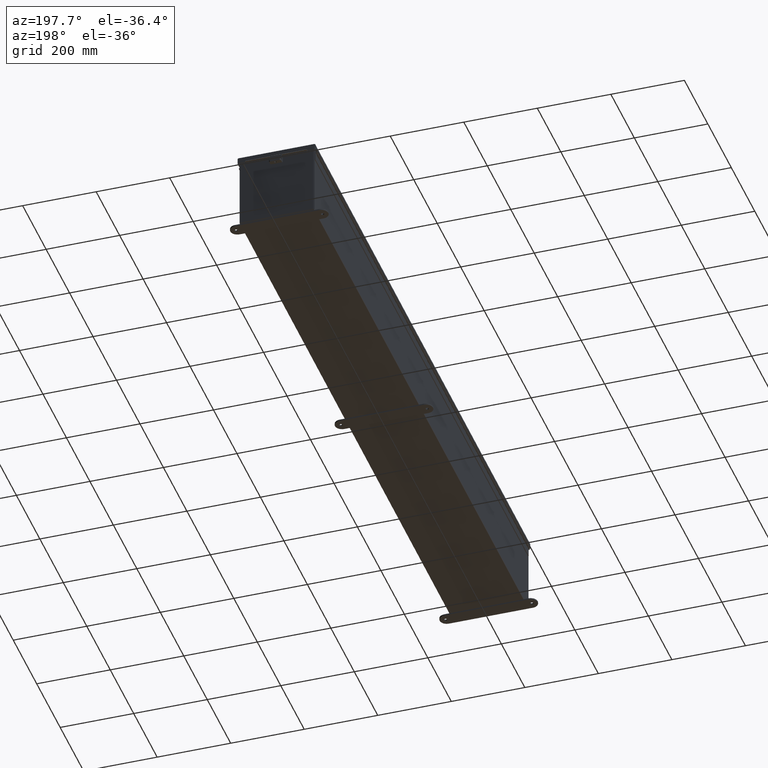
[diagram: clean part render]
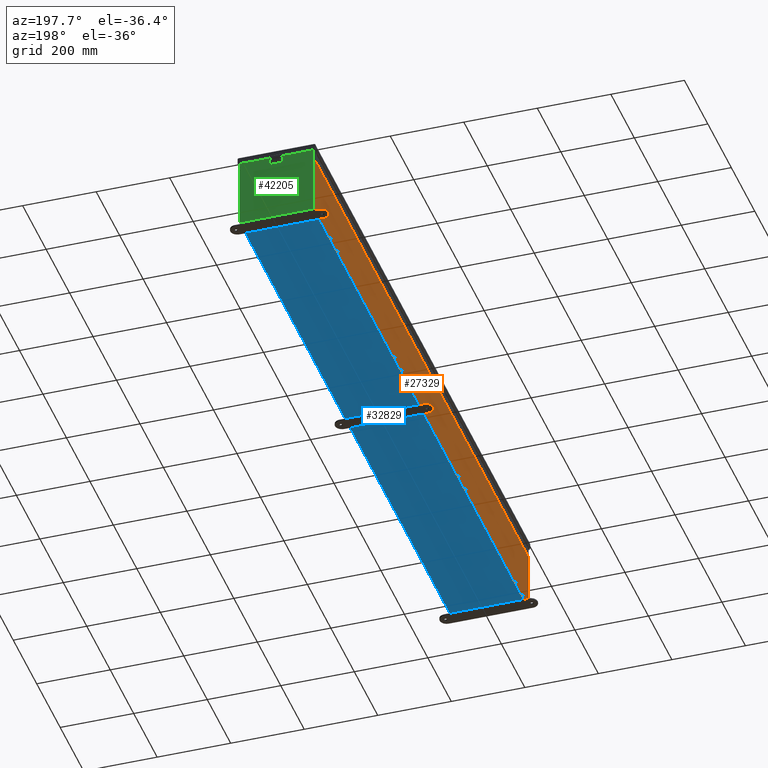
[diagram: same view with three faces highlighted in distinct colors, each labeled with its STEP entity id]
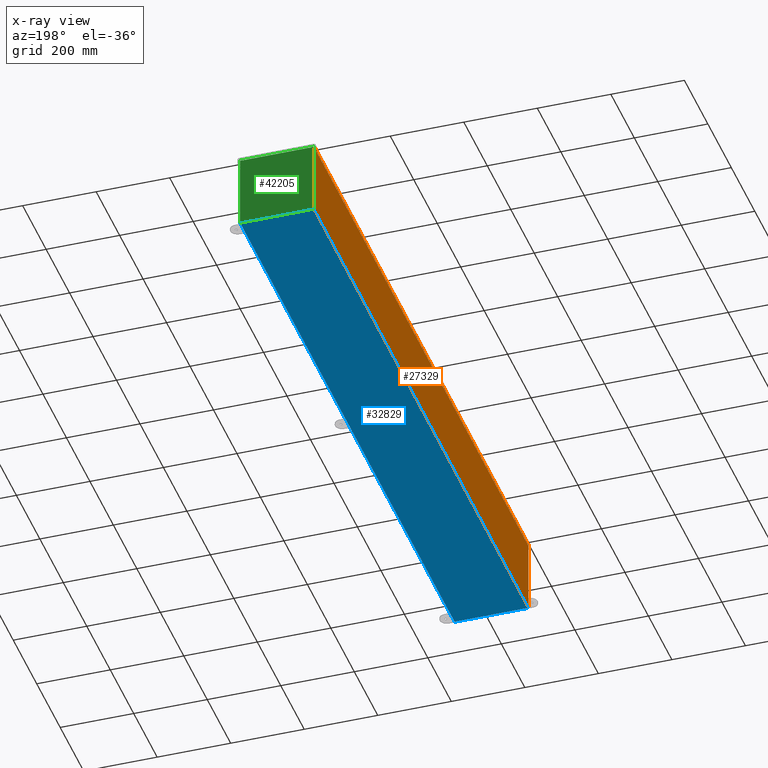
[diagram: x-ray of the same camera — body ghosted, the three highlighted faces saturated]
A machine part, auxiliary view with three faces highlighted in distinct colors.
The next image is the same camera in x-ray (body ghosted, the three faces saturated) — at least one of them is partly hidden behind the body in this view.
Their STEP definitions:

[orange] entity #27329 — the highlighted planar face has unit normal (1, 0, 0).
#32 = EDGE_CURVE ( 'NONE', #48515, #21701, #20606, .T. ) ;
#58 = DIRECTION ( 'NONE',  ( -7.938364978030872700E-032, 1.000000000000000000, 2.281273637518070200E-017 ) ) ;
#2464 = LINE ( 'NONE', #43130, #32541 ) ;
#4367 = PLANE ( 'NONE',  #34565 ) ;
#4527 = CARTESIAN_POINT ( 'NONE',  ( -3.999999999999997800, 35.92530000000000700, 0.01299999999999902300 ) ) ;
#6604 = EDGE_LOOP ( 'NONE', ( #47813, #37841, #17619, #45711 ) ) ;
#8225 = DIRECTION ( 'NONE',  ( 3.479795166820706300E-015, 0.0000000000000000000, -1.000000000000000000 ) ) ;
#10122 = EDGE_CURVE ( 'NONE', #17709, #26341, #26328, .T. ) ;
#11805 = DIRECTION ( 'NONE',  ( 0.0000000000000000000, 1.000000000000000000, 0.0000000000000000000 ) ) ;
#12003 = EDGE_CURVE ( 'NONE', #17709, #21701, #20037, .T. ) ;
#16453 = DIRECTION ( 'NONE',  ( 3.479795166820705900E-015, 0.0000000000000000000, -1.000000000000000000 ) ) ;
#17619 = ORIENTED_EDGE ( 'NONE', *, *, #12003, .F. ) ;
#17709 = VERTEX_POINT ( 'NONE', #40035 ) ;
#19374 = VECTOR ( 'NONE', #8225, 39.37007874015748100 ) ;
#20037 = LINE ( 'NONE', #43270, #32861 ) ;
#20234 = DIRECTION ( 'NONE',  ( -3.479795166820706300E-015, 5.567672266913130300E-016, 1.000000000000000000 ) ) ;
#20606 = LINE ( 'NONE', #35673, #19374 ) ;
#21701 = VERTEX_POINT ( 'NONE', #4527 ) ;
#24230 = CARTESIAN_POINT ( 'NONE',  ( -4.000000000000024900, 35.92530000000000000, 7.837599999999999200 ) ) ;
#25092 = VECTOR ( 'NONE', #20234, 39.37007874015748100 ) ;
#26328 = LINE ( 'NONE', #43618, #25092 ) ;
#26341 = VERTEX_POINT ( 'NONE', #26576 ) ;
#26576 = CARTESIAN_POINT ( 'NONE',  ( -4.000000000000026600, -35.92529999999997900, 7.837599999999999200 ) ) ;
#27329 = ADVANCED_FACE ( 'NONE', ( #28481 ), #4367, .F. ) ;
#28481 = FACE_OUTER_BOUND ( 'NONE', #6604, .T. ) ;
#32541 = VECTOR ( 'NONE', #11805, 39.37007874015748100 ) ;
#32861 = VECTOR ( 'NONE', #58, 39.37007874015748100 ) ;
#34565 = AXIS2_PLACEMENT_3D ( 'NONE', #43605, #39872, #16453 ) ;
#35673 = CARTESIAN_POINT ( 'NONE',  ( -3.999999999999997800, 35.92530000000000000, -1.417999849211356600E-014 ) ) ;
#37841 = ORIENTED_EDGE ( 'NONE', *, *, #32, .T. ) ;
#39872 = DIRECTION ( 'NONE',  ( 1.000000000000000000, 0.0000000000000000000, 3.479795166820705900E-015 ) ) ;
#40035 = CARTESIAN_POINT ( 'NONE',  ( -3.999999999999997800, -35.92530000000000000, 0.01299999999999820400 ) ) ;
#43130 = CARTESIAN_POINT ( 'NONE',  ( -4.000000000000026600, -35.92529999999999300, 7.837599999999999200 ) ) ;
#43270 = CARTESIAN_POINT ( 'NONE',  ( -3.999999999999997800, 35.92530000000000000, 0.01299999999999984300 ) ) ;
#43605 = CARTESIAN_POINT ( 'NONE',  ( -3.999999999999997800, 0.0000000000000000000, -1.417999849211356600E-014 ) ) ;
#43618 = CARTESIAN_POINT ( 'NONE',  ( -3.999999999999997800, -35.92530000000000000, 5.822251036496960700E-015 ) ) ;
#45711 = ORIENTED_EDGE ( 'NONE', *, *, #10122, .T. ) ;
#47813 = ORIENTED_EDGE ( 'NONE', *, *, #47838, .T. ) ;
#47838 = EDGE_CURVE ( 'NONE', #26341, #48515, #2464, .T. ) ;
#48515 = VERTEX_POINT ( 'NONE', #24230 ) ;

[blue] entity #32829 — the highlighted planar face has unit normal (0, 0, -1).
#889 = CARTESIAN_POINT ( 'NONE',  ( -3.912299999999997400, 35.92530000000000000, -0.07470000000000000300 ) ) ;
#2808 = VERTEX_POINT ( 'NONE', #40783 ) ;
#4111 = CARTESIAN_POINT ( 'NONE',  ( 3.912300000000001900, 35.92530000000000700, -0.07469999999999912800 ) ) ;
#5750 = CARTESIAN_POINT ( 'NONE',  ( 0.0000000000000000000, 0.0000000000000000000, -0.07470000000000000300 ) ) ;
#6006 = CARTESIAN_POINT ( 'NONE',  ( -3.912299999999997400, -35.92530000000000000, -0.07470000000000076600 ) ) ;
#6600 = VECTOR ( 'NONE', #10897, 39.37007874015748100 ) ;
#6794 = VECTOR ( 'NONE', #24023, 39.37007874015748100 ) ;
#7818 = LINE ( 'NONE', #14899, #6600 ) ;
#8319 = CARTESIAN_POINT ( 'NONE',  ( -3.912299999999997400, -35.92530000000000700, -0.07470000000000076600 ) ) ;
#8756 = ORIENTED_EDGE ( 'NONE', *, *, #14145, .T. ) ;
#10897 = DIRECTION ( 'NONE',  ( -1.000000000000000000, -0.0000000000000000000, -0.0000000000000000000 ) ) ;
#12883 = VERTEX_POINT ( 'NONE', #49865 ) ;
#13699 = DIRECTION ( 'NONE',  ( -1.000000000000000000, 0.0000000000000000000, -0.0000000000000000000 ) ) ;
#14145 = EDGE_CURVE ( 'NONE', #29740, #50049, #30803, .T. ) ;
#14899 = CARTESIAN_POINT ( 'NONE',  ( -3.999999999999997800, 35.92530000000000000, -0.07470000000000000300 ) ) ;
#16973 = ORIENTED_EDGE ( 'NONE', *, *, #31266, .T. ) ;
#17285 = LINE ( 'NONE', #4111, #6794 ) ;
#20885 = AXIS2_PLACEMENT_3D ( 'NONE', #5750, #37122, #13699 ) ;
#24023 = DIRECTION ( 'NONE',  ( -0.0000000000000000000, -1.000000000000000000, -0.0000000000000000000 ) ) ;
#29740 = VERTEX_POINT ( 'NONE', #6006 ) ;
#30803 = LINE ( 'NONE', #8319, #40002 ) ;
#31266 = EDGE_CURVE ( 'NONE', #12883, #2808, #17285, .T. ) ;
#31427 = CARTESIAN_POINT ( 'NONE',  ( -3.999999999999997800, -35.92530000000000000, -0.07470000000000000300 ) ) ;
#31820 = DIRECTION ( 'NONE',  ( -0.0000000000000000000, 1.000000000000000000, -0.0000000000000000000 ) ) ;
#32829 = ADVANCED_FACE ( 'NONE', ( #34844 ), #48755, .T. ) ;
#33024 = EDGE_CURVE ( 'NONE', #12883, #50049, #7818, .T. ) ;
#34363 = ORIENTED_EDGE ( 'NONE', *, *, #33024, .F. ) ;
#34844 = FACE_OUTER_BOUND ( 'NONE', #42800, .T. ) ;
#35016 = ORIENTED_EDGE ( 'NONE', *, *, #46764, .F. ) ;
#35489 = LINE ( 'NONE', #31427, #44629 ) ;
#37122 = DIRECTION ( 'NONE',  ( 0.0000000000000000000, 0.0000000000000000000, -1.000000000000000000 ) ) ;
#40002 = VECTOR ( 'NONE', #31820, 39.37007874015748100 ) ;
#40783 = CARTESIAN_POINT ( 'NONE',  ( 3.912300000000001900, -35.92530000000000700, -0.07470000000000000300 ) ) ;
#42800 = EDGE_LOOP ( 'NONE', ( #34363, #16973, #35016, #8756 ) ) ;
#44629 = VECTOR ( 'NONE', #47143, 39.37007874015748100 ) ;
#46764 = EDGE_CURVE ( 'NONE', #29740, #2808, #35489, .T. ) ;
#47143 = DIRECTION ( 'NONE',  ( 1.000000000000000000, 0.0000000000000000000, 0.0000000000000000000 ) ) ;
#48755 = PLANE ( 'NONE',  #20885 ) ;
#49865 = CARTESIAN_POINT ( 'NONE',  ( 3.912300000000001900, 35.92530000000000000, -0.07469999999999912800 ) ) ;
#50049 = VERTEX_POINT ( 'NONE', #889 ) ;

[green] entity #42205 — the highlighted planar face has unit normal (0, -1, 0).
#478 = VERTEX_POINT ( 'NONE', #49456 ) ;
#602 = CARTESIAN_POINT ( 'NONE',  ( -3.925300000000000500, 0.0000000000000000000, -3.925300000000000500 ) ) ;
#699 = CARTESIAN_POINT ( 'NONE',  ( 3.925299999999999100, 0.0000000000000000000, 3.925299999999999600 ) ) ;
#901 = EDGE_CURVE ( 'NONE', #11595, #46160, #48007, .T. ) ;
#903 = ORIENTED_EDGE ( 'NONE', *, *, #26582, .T. ) ;
#929 = PLANE ( 'NONE',  #50400 ) ;
#1655 = EDGE_CURVE ( 'NONE', #49364, #11595, #26526, .T. ) ;
#2507 = DIRECTION ( 'NONE',  ( 0.0000000000000000000, 0.0000000000000000000, 1.000000000000000000 ) ) ;
#3433 = LINE ( 'NONE', #9927, #32283 ) ;
#4275 = LINE ( 'NONE', #35798, #11057 ) ;
#4364 = VECTOR ( 'NONE', #2507, 39.37007874015748100 ) ;
#4566 = DIRECTION ( 'NONE',  ( -1.000000000000000000, -0.0000000000000000000, -0.0000000000000000000 ) ) ;
#4892 = CARTESIAN_POINT ( 'NONE',  ( 0.0000000000000000000, 0.0000000000000000000, 0.0000000000000000000 ) ) ;
#7537 = EDGE_CURVE ( 'NONE', #28953, #9485, #31228, .T. ) ;
#8452 = VECTOR ( 'NONE', #38476, 39.37007874015748100 ) ;
#8487 = ORIENTED_EDGE ( 'NONE', *, *, #11712, .F. ) ;
#8669 = EDGE_CURVE ( 'NONE', #31487, #478, #31727, .T. ) ;
#9485 = VERTEX_POINT ( 'NONE', #20294 ) ;
#9927 = CARTESIAN_POINT ( 'NONE',  ( 3.619649999999915200, 0.0000000000000000000, -7.867722221753078700E-014 ) ) ;
#10269 = CARTESIAN_POINT ( 'NONE',  ( 3.600974999999999100, 0.0000000000000000000, 3.874949999999999700 ) ) ;
#10648 = EDGE_CURVE ( 'NONE', #478, #21712, #30553, .T. ) ;
#11057 = VECTOR ( 'NONE', #39748, 39.37007874015748100 ) ;
#11595 = VERTEX_POINT ( 'NONE', #32558 ) ;
#11712 = EDGE_CURVE ( 'NONE', #49364, #31189, #3433, .T. ) ;
#13595 = CARTESIAN_POINT ( 'NONE',  ( -3.925300000000000500, 0.0000000000000000000, -3.925300000000000500 ) ) ;
#14031 = CARTESIAN_POINT ( 'NONE',  ( -3.925300000000000500, 0.0000000000000000000, 3.925299999999999600 ) ) ;
#14270 = DIRECTION ( 'NONE',  ( 0.0000000000000000000, 0.0000000000000000000, -1.000000000000000000 ) ) ;
#15306 = CARTESIAN_POINT ( 'NONE',  ( 3.619650000000000500, 0.0000000000000000000, 3.925299999999999600 ) ) ;
#16952 = DIRECTION ( 'NONE',  ( 1.000000000000000000, 0.0000000000000000000, 0.0000000000000000000 ) ) ;
#17877 = CARTESIAN_POINT ( 'NONE',  ( -3.925300000000000500, 0.0000000000000000000, 3.925299999999999600 ) ) ;
#19499 = VECTOR ( 'NONE', #16952, 39.37007874015748100 ) ;
#20294 = CARTESIAN_POINT ( 'NONE',  ( -3.619650000000000500, 0.0000000000000000000, 3.874949999999999700 ) ) ;
#20388 = DIRECTION ( 'NONE',  ( 0.0000000000000000000, 0.0000000000000000000, 1.000000000000000000 ) ) ;
#20867 = VERTEX_POINT ( 'NONE', #27212 ) ;
#20979 = EDGE_CURVE ( 'NONE', #9485, #21712, #25051, .T. ) ;
#21043 = CARTESIAN_POINT ( 'NONE',  ( -3.600975000000000000, 0.0000000000000000000, 3.874949999999999700 ) ) ;
#21712 = VERTEX_POINT ( 'NONE', #43759 ) ;
#21794 = EDGE_CURVE ( 'NONE', #38187, #35779, #50679, .T. ) ;
#22082 = ORIENTED_EDGE ( 'NONE', *, *, #1655, .T. ) ;
#23930 = CARTESIAN_POINT ( 'NONE',  ( 3.925299999999999100, 0.0000000000000000000, -3.925300000000000500 ) ) ;
#23947 = CARTESIAN_POINT ( 'NONE',  ( -3.582300000000000000, 0.0000000000000000000, 3.874949999999999700 ) ) ;
#24859 = FACE_OUTER_BOUND ( 'NONE', #47854, .T. ) ;
#24939 = DIRECTION ( 'NONE',  ( 0.0000000000000000000, 0.0000000000000000000, -1.000000000000000000 ) ) ;
#25051 = LINE ( 'NONE', #39868, #34247 ) ;
#25186 = CARTESIAN_POINT ( 'NONE',  ( 3.619649999999999100, 0.0000000000000000000, 3.874949999999999700 ) ) ;
#25187 = ORIENTED_EDGE ( 'NONE', *, *, #44156, .F. ) ;
#25718 = DIRECTION ( 'NONE',  ( 1.000000000000000000, 0.0000000000000000000, 0.0000000000000000000 ) ) ;
#26526 = LINE ( 'NONE', #17877, #36936 ) ;
#26582 = EDGE_CURVE ( 'NONE', #46160, #31487, #31596, .T. ) ;
#26651 = CARTESIAN_POINT ( 'NONE',  ( -3.925300000000000500, 0.0000000000000000000, 3.925299999999999600 ) ) ;
#27212 = CARTESIAN_POINT ( 'NONE',  ( 3.582299999999999200, 0.0000000000000000000, 3.874949999999999700 ) ) ;
#27936 = ORIENTED_EDGE ( 'NONE', *, *, #21794, .T. ) ;
#28953 = VERTEX_POINT ( 'NONE', #23947 ) ;
#29157 = ORIENTED_EDGE ( 'NONE', *, *, #8669, .T. ) ;
#30553 = LINE ( 'NONE', #26651, #8452 ) ;
#31189 = VERTEX_POINT ( 'NONE', #25186 ) ;
#31228 = CIRCLE ( 'NONE', #44045, 0.01867500000000003900 ) ;
#31487 = VERTEX_POINT ( 'NONE', #13595 ) ;
#31596 = LINE ( 'NONE', #602, #49965 ) ;
#31727 = LINE ( 'NONE', #14031, #40909 ) ;
#31800 = EDGE_CURVE ( 'NONE', #38187, #28953, #4275, .T. ) ;
#31870 = CARTESIAN_POINT ( 'NONE',  ( 3.582299999999999200, 0.0000000000000000000, 3.912299999999998800 ) ) ;
#32106 = DIRECTION ( 'NONE',  ( 0.0000000000000000000, 0.0000000000000000000, -1.000000000000000000 ) ) ;
#32283 = VECTOR ( 'NONE', #33566, 39.37007874015748100 ) ;
#32558 = CARTESIAN_POINT ( 'NONE',  ( 3.925299999999999100, 0.0000000000000000000, 3.925299999999999600 ) ) ;
#33566 = DIRECTION ( 'NONE',  ( -2.170286390199978800E-014, 0.0000000000000000000, -1.000000000000000000 ) ) ;
#34207 = EDGE_CURVE ( 'NONE', #31189, #20867, #45065, .T. ) ;
#34247 = VECTOR ( 'NONE', #20388, 39.37007874015748100 ) ;
#35674 = LINE ( 'NONE', #49457, #4364 ) ;
#35779 = VERTEX_POINT ( 'NONE', #31870 ) ;
#35798 = CARTESIAN_POINT ( 'NONE',  ( -3.582300000000000000, 0.0000000000000000000, 0.0000000000000000000 ) ) ;
#36279 = DIRECTION ( 'NONE',  ( 0.0000000000000000000, -0.0000000000000000000, -1.000000000000000000 ) ) ;
#36416 = CARTESIAN_POINT ( 'NONE',  ( -3.582300000000000000, 0.0000000000000000000, 3.912299999999998800 ) ) ;
#36467 = ORIENTED_EDGE ( 'NONE', *, *, #20979, .F. ) ;
#36936 = VECTOR ( 'NONE', #25718, 39.37007874015748100 ) ;
#37627 = VECTOR ( 'NONE', #32106, 39.37007874015748100 ) ;
#37689 = DIRECTION ( 'NONE',  ( -0.0000000000000000000, 1.000000000000000000, -0.0000000000000000000 ) ) ;
#37973 = AXIS2_PLACEMENT_3D ( 'NONE', #10269, #37689, #14270 ) ;
#38187 = VERTEX_POINT ( 'NONE', #47377 ) ;
#38476 = DIRECTION ( 'NONE',  ( 1.000000000000000000, 0.0000000000000000000, 0.0000000000000000000 ) ) ;
#39748 = DIRECTION ( 'NONE',  ( 0.0000000000000000000, 0.0000000000000000000, -1.000000000000000000 ) ) ;
#39868 = CARTESIAN_POINT ( 'NONE',  ( -3.619650000000000500, 0.0000000000000000000, 0.0000000000000000000 ) ) ;
#40049 = DIRECTION ( 'NONE',  ( 0.0000000000000000000, -1.000000000000000000, 0.0000000000000000000 ) ) ;
#40909 = VECTOR ( 'NONE', #45275, 39.37007874015748100 ) ;
#42042 = ORIENTED_EDGE ( 'NONE', *, *, #901, .T. ) ;
#42205 = ADVANCED_FACE ( 'NONE', ( #24859 ), #929, .F. ) ;
#43080 = ORIENTED_EDGE ( 'NONE', *, *, #7537, .F. ) ;
#43759 = CARTESIAN_POINT ( 'NONE',  ( -3.619650000000000500, 0.0000000000000000000, 3.925299999999999600 ) ) ;
#44045 = AXIS2_PLACEMENT_3D ( 'NONE', #21043, #48391, #24939 ) ;
#44107 = ORIENTED_EDGE ( 'NONE', *, *, #31800, .F. ) ;
#44156 = EDGE_CURVE ( 'NONE', #20867, #35779, #35674, .T. ) ;
#45065 = CIRCLE ( 'NONE', #37973, 0.01867500000000003900 ) ;
#45275 = DIRECTION ( 'NONE',  ( -0.0000000000000000000, -0.0000000000000000000, 1.000000000000000000 ) ) ;
#46160 = VERTEX_POINT ( 'NONE', #23930 ) ;
#47377 = CARTESIAN_POINT ( 'NONE',  ( -3.582300000000000000, 0.0000000000000000000, 3.912299999999998800 ) ) ;
#47854 = EDGE_LOOP ( 'NONE', ( #36467, #43080, #44107, #27936, #25187, #48570, #8487, #22082, #42042, #903, #29157, #50385 ) ) ;
#48007 = LINE ( 'NONE', #699, #37627 ) ;
#48391 = DIRECTION ( 'NONE',  ( -0.0000000000000000000, 1.000000000000000000, -0.0000000000000000000 ) ) ;
#48570 = ORIENTED_EDGE ( 'NONE', *, *, #34207, .F. ) ;
#49364 = VERTEX_POINT ( 'NONE', #15306 ) ;
#49456 = CARTESIAN_POINT ( 'NONE',  ( -3.925300000000000500, 0.0000000000000000000, 3.925299999999999600 ) ) ;
#49457 = CARTESIAN_POINT ( 'NONE',  ( 3.582299999999999200, 0.0000000000000000000, 0.0000000000000000000 ) ) ;
#49965 = VECTOR ( 'NONE', #4566, 39.37007874015748100 ) ;
#50385 = ORIENTED_EDGE ( 'NONE', *, *, #10648, .T. ) ;
#50400 = AXIS2_PLACEMENT_3D ( 'NONE', #4892, #40049, #36279 ) ;
#50679 = LINE ( 'NONE', #36416, #19499 ) ;